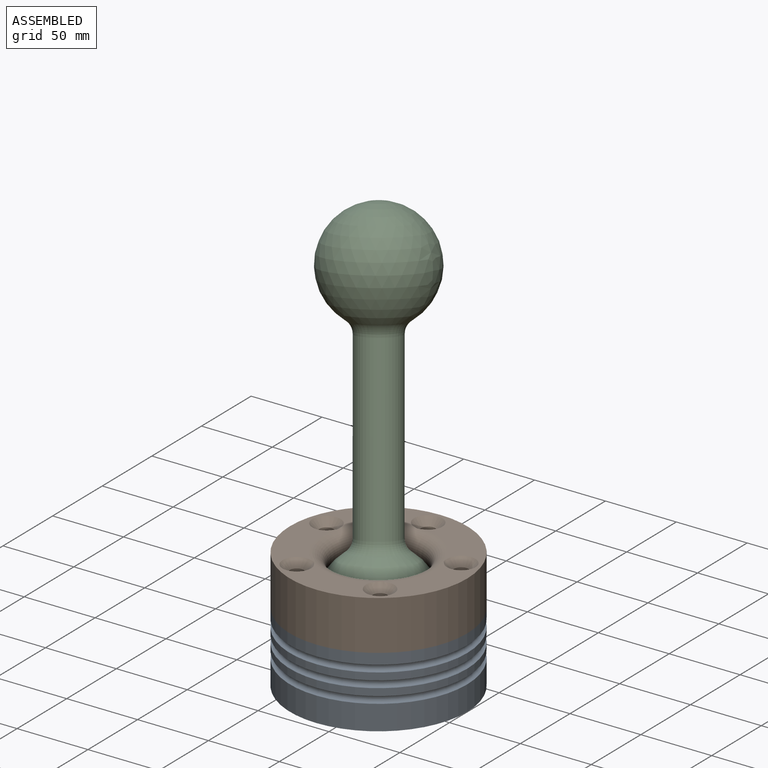
[diagram: assembled view]
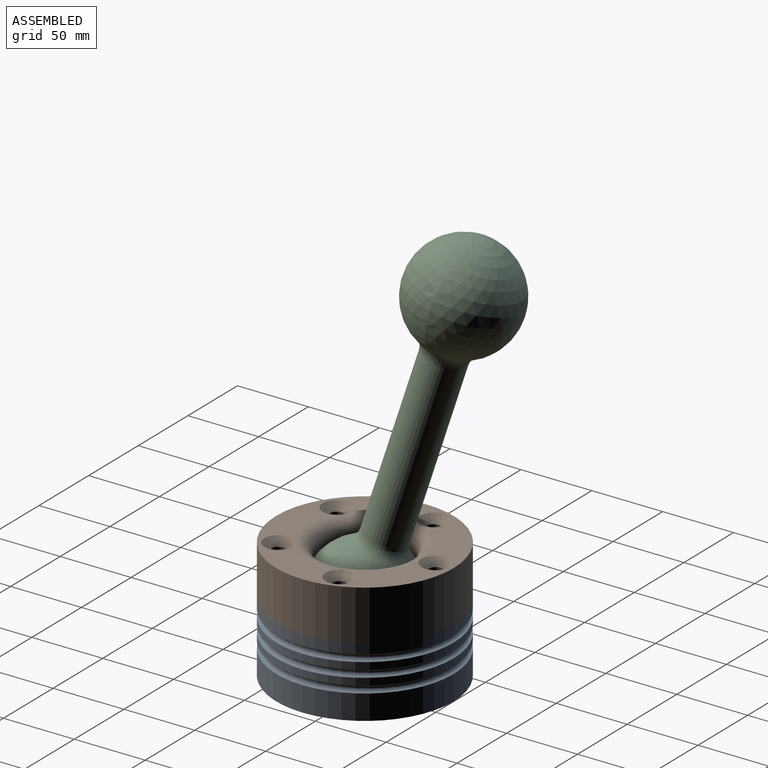
[diagram: assembled view, second angle]
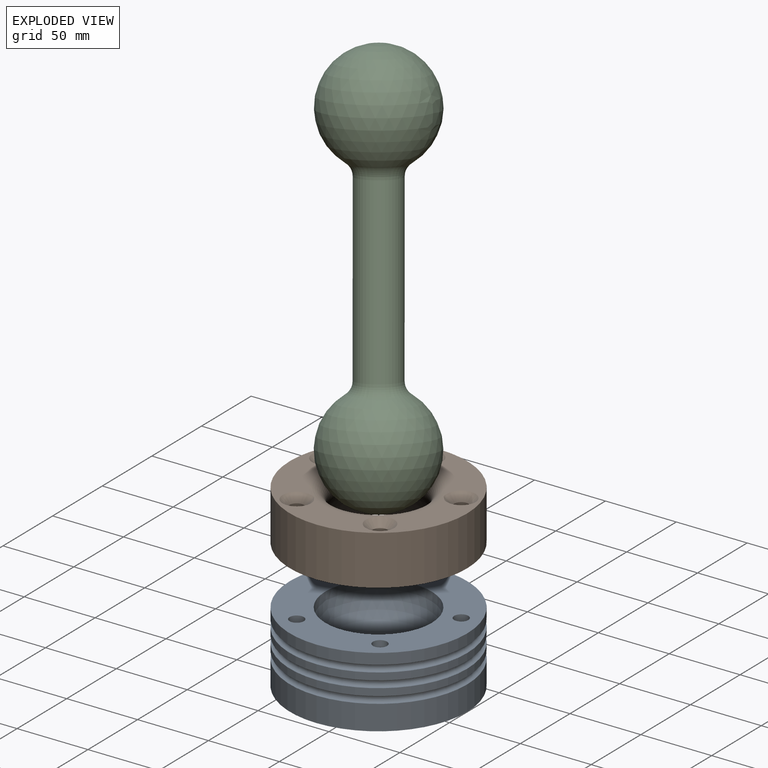
[diagram: exploded view]
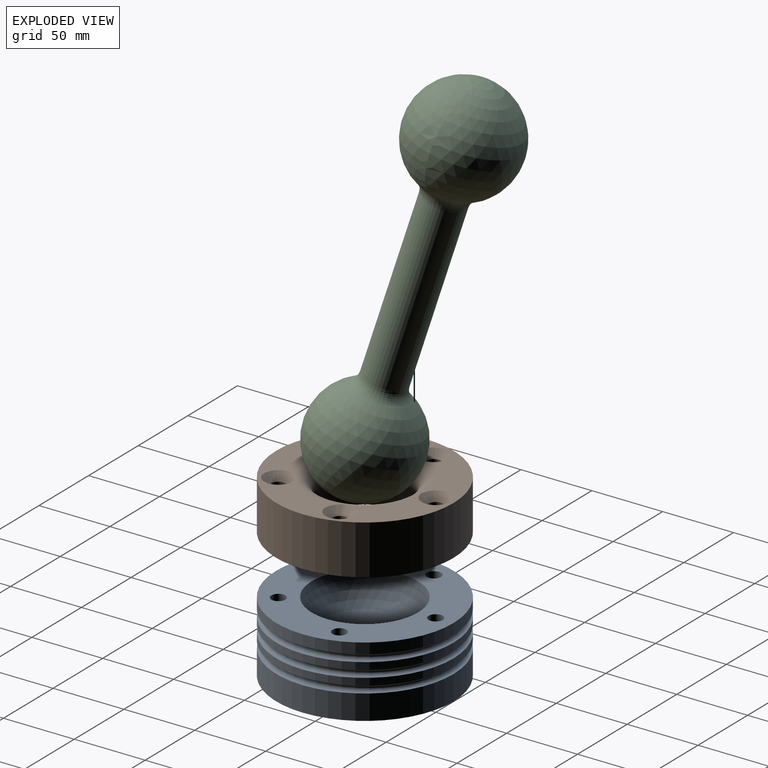
[diagram: exploded view, second angle]
ASSEMBLY  parts=3 mates=2
PART A: 22 faces, bbox 139.1x139.1x55 mm
  f0: torus R=62.5mm, axis (0,0,-1), area 3005.7mm2, adj f1,f11
  f1: cylinder r=62.5mm len=125mm, axis (0,0,-1), area 2945.2mm2, adj f0,f2
  f2: plane 125x125mm, normal (0,0,1), area 7461.3mm2, adj f1,f3,f12,f14,f16,f18,f20
  f3: sphere r=37.5mm, area 8835.7mm2, adj f2
  f4: plane 40x40mm, normal (0,0,-1), area 1256.6mm2, adj f5
  f5: cone r=47.5mm half-angle=79.7deg, axis (0,0,1), area 5927.2mm2, adj f4,f6
  f6: plane 125x125mm, normal (0,0,-1), area 5183.6mm2, adj f5,f7
  f7: cylinder r=62.5mm len=125mm, axis (0,0,-1), area 6872.2mm2, adj f6,f8
  f8: torus R=62.5mm, axis (0,0,-1), area 3005.7mm2, adj f7,f9
  f9: cylinder r=62.5mm len=125mm, axis (0,0,-1), area 1963.5mm2, adj f8,f10
  f10: torus R=62.5mm, axis (0,0,-1), area 3005.7mm2, adj f9,f11
  f11: cylinder r=62.5mm len=125mm, axis (0,0,-1), area 1963.5mm2, adj f0,f10
  f12: cylinder r=5mm len=25mm, axis (0,0,1), area 785.4mm2, adj f2,f13
  f13: plane 10x10mm, normal (0,0,1), area 78.5mm2, adj f12
  f14: cylinder r=5mm len=25mm, axis (0,0,1), area 785.4mm2, adj f2,f15
  f15: plane 10x10mm, normal (0,0,1), area 78.5mm2, adj f14
  f16: cylinder r=5mm len=25mm, axis (0,0,1), area 785.4mm2, adj f2,f17
  f17: plane 10x10mm, normal (0,0,1), area 78.5mm2, adj f16
  f18: cylinder r=5mm len=25mm, axis (0,0,1), area 785.4mm2, adj f2,f19
  f19: plane 10x10mm, normal (0,0,1), area 78.5mm2, adj f18
  f20: cylinder r=5mm len=25mm, axis (0,0,1), area 785.4mm2, adj f2,f21
  f21: plane 10x10mm, normal (0,0,1), area 78.5mm2, adj f20
PART B: 20 faces, bbox 125x125x35 mm
  f0: sphere r=37.5mm, area 4650.4mm2, adj f1,f9
  f1: plane 125x125mm, normal (0,0,-1), area 7461.3mm2, adj f0,f2,f4,f5,f6,f7,f8
  f2: cylinder r=62.5mm len=125mm, axis (0,0,1), area 13744.5mm2, adj f1,f3
  f3: plane 125x125mm, normal (0,0,1), area 5582.8mm2, adj f2,f9,f10,f12,f14,f16,f18
  f4: cylinder r=5mm len=30mm, axis (0,0,1), area 942.5mm2, adj f1,f18,f19
  f5: cylinder r=5mm len=30mm, axis (0,0,1), area 942.5mm2, adj f1,f10,f11
  f6: cylinder r=5mm len=30mm, axis (0,0,1), area 942.5mm2, adj f1,f12,f13
  f7: cylinder r=5mm len=30mm, axis (0,0,1), area 942.5mm2, adj f1,f14,f15
  f8: cylinder r=5mm len=30mm, axis (0,0,1), area 942.5mm2, adj f1,f16,f17
  f9: torus R=40.39mm, axis (0,0,-1), area 4420.9mm2, adj f0,f3,f11,f13,f15,f17,f19
  f10: cone r=5mm half-angle=45deg, axis (0,0,1), area 306.6mm2, adj f3,f5,f11
  f11: bspline ~6.11x5.86mm, area 27.8mm2, adj f5,f9,f10
  f12: cone r=5mm half-angle=45deg, axis (0,0,1), area 306.6mm2, adj f3,f6,f13
  f13: bspline ~6.11x5.86mm, area 27.8mm2, adj f6,f9,f12
  f14: cone r=5mm half-angle=45deg, axis (0,0,1), area 306.6mm2, adj f3,f7,f15
  f15: bspline ~6.13x5.04mm, area 27.8mm2, adj f7,f9,f14
  f16: cone r=5mm half-angle=45deg, axis (0,0,1), area 306.6mm2, adj f3,f8,f17
  f17: bspline ~5.78x5.02mm, area 27.8mm2, adj f8,f9,f16
  f18: cone r=5mm half-angle=45deg, axis (0,0,1), area 306.6mm2, adj f3,f4,f19
  f19: bspline ~6.13x5.04mm, area 27.8mm2, adj f4,f9,f18
PART C: 5 faces, bbox 75x75x275 mm
  f0: sphere r=37.5mm, area 16348.7mm2, adj f3
  f1: cylinder r=15mm len=119.22mm, axis (0,0,-1), area 11236.5mm2, adj f3,f4
  f2: sphere r=37.5mm, area 16348.7mm2, adj f4
  f3: torus R=25mm, axis (0,0,-1), area 1062.5mm2, adj f0,f1
  f4: torus R=25mm, axis (0,0,1), area 1062.5mm2, adj f1,f2
PLACE A at identity fixed
PLACE B at identity
PLACE C rot(axis=(-0.82,-0.55,0.11),16.7deg) t=(0,0,50)mm
MATE fastened A.f0 <-> B.f9  axis (0,0,1) through (0,0,50)mm
MATE ball A.f0 <-> C.f1  axis (0,0,1) through (0,0,50)mm
